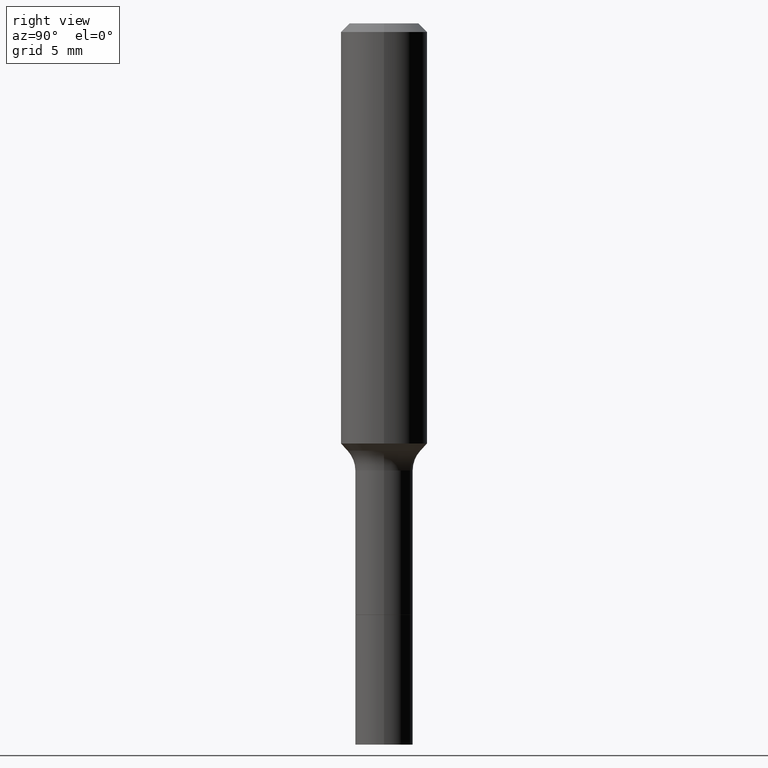
[diagram: clean part render]
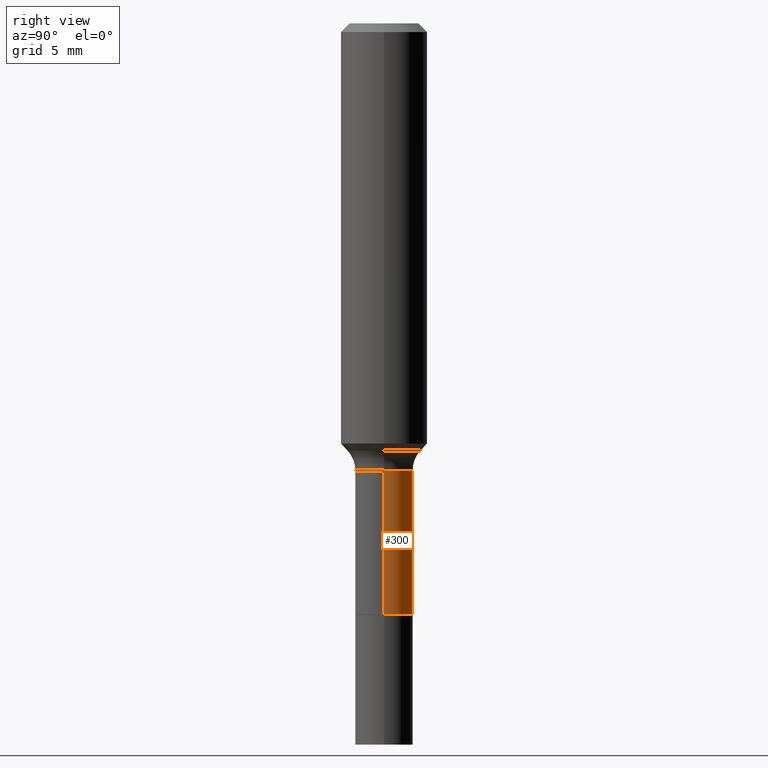
[diagram: same view with one face highlighted and labeled with its STEP entity id]
A machine part, right view. The second image highlights one B-rep face of the part: STEP entity #300.
In plain terms, the highlighted cylindrical surface (edge-blend (fillet) strip) has radius 2.0002 mm, axis along (-0, 0, 1).
Its self-contained STEP definition (entity closure, byte-faithful):
#11 = EDGE_CURVE ( 'NONE', #435, #438, #134, .T. ) ;
#16 = EDGE_CURVE ( 'NONE', #350, #37, #96, .T. ) ;
#36 = DIRECTION ( 'NONE',  ( -2.445468806185136597E-29, 3.491481338843145583E-15, 1.000000000000000000 ) ) ;
#37 = VERTEX_POINT ( 'NONE', #99 ) ;
#45 = CARTESIAN_POINT ( 'NONE',  ( 3.946986653182810382E-29, -5.635250880892837556E-15, -1.614000000000000101 ) ) ;
#71 = VECTOR ( 'NONE', #333, 39.37007874015748143 ) ;
#92 = EDGE_LOOP ( 'NONE', ( #171, #340, #132, #155 ) ) ;
#96 = LINE ( 'NONE', #411, #375 ) ;
#97 = DIRECTION ( 'NONE',  ( -2.445468806185136877E-29, 3.491481338843145188E-15, 1.000000000000000000 ) ) ;
#99 = CARTESIAN_POINT ( 'NONE',  ( -0.07874999999999994504, -4.388749523064369885E-15, -1.220499999999999918 ) ) ;
#107 = CARTESIAN_POINT ( 'NONE',  ( 0.000000000000000000, 0.000000000000000000, 0.000000000000000000 ) ) ;
#132 = ORIENTED_EDGE ( 'NONE', *, *, #138, .F. ) ;
#134 = LINE ( 'NONE', #449, #71 ) ;
#135 = CIRCLE ( 'NONE', #152, 0.07875000000000000056 ) ;
#138 = EDGE_CURVE ( 'NONE', #438, #37, #431, .T. ) ;
#152 = AXIS2_PLACEMENT_3D ( 'NONE', #45, #36, #513 ) ;
#155 = ORIENTED_EDGE ( 'NONE', *, *, #11, .F. ) ;
#171 = ORIENTED_EDGE ( 'NONE', *, *, #407, .T. ) ;
#189 = DIRECTION ( 'NONE',  ( -2.445468806185136597E-29, 3.491481338843145583E-15, 1.000000000000000000 ) ) ;
#209 = AXIS2_PLACEMENT_3D ( 'NONE', #253, #490, #368 ) ;
#224 = FACE_OUTER_BOUND ( 'NONE', #92, .T. ) ;
#235 = CARTESIAN_POINT ( 'NONE',  ( 0.07874999999999994504, -4.811261284925852373E-15, -1.220499999999999918 ) ) ;
#253 = CARTESIAN_POINT ( 'NONE',  ( 2.984694677948959472E-29, -4.261352974058059028E-15, -1.220499999999999918 ) ) ;
#261 = AXIS2_PLACEMENT_3D ( 'NONE', #107, #189, #503 ) ;
#300 = ADVANCED_FACE ( 'NONE', ( #224 ), #500, .T. ) ;
#312 = CARTESIAN_POINT ( 'NONE',  ( -0.07875000000000000056, -4.388749523064369885E-15, -1.614000000000000101 ) ) ;
#333 = DIRECTION ( 'NONE',  ( -2.445468806185136877E-29, 3.491481338843145188E-15, 1.000000000000000000 ) ) ;
#340 = ORIENTED_EDGE ( 'NONE', *, *, #16, .T. ) ;
#350 = VERTEX_POINT ( 'NONE', #312 ) ;
#368 = DIRECTION ( 'NONE',  ( 1.000000000000000000, -6.982962677686266711E-15, 0.000000000000000000 ) ) ;
#375 = VECTOR ( 'NONE', #97, 39.37007874015748143 ) ;
#407 = EDGE_CURVE ( 'NONE', #435, #350, #135, .T. ) ;
#411 = CARTESIAN_POINT ( 'NONE',  ( -0.07874999999999997280, 5.595524044110787031E-16, -3.873661383575737091E-30 ) ) ;
#431 = CIRCLE ( 'NONE', #209, 0.07874999999999994504 ) ;
#435 = VERTEX_POINT ( 'NONE', #483 ) ;
#438 = VERTEX_POINT ( 'NONE', #235 ) ;
#449 = CARTESIAN_POINT ( 'NONE',  ( 0.07874999999999997280, -5.499083108677933457E-16, 3.839989210939298316E-30 ) ) ;
#483 = CARTESIAN_POINT ( 'NONE',  ( 0.07875000000000000056, -6.185159191760630902E-15, -1.614000000000000101 ) ) ;
#490 = DIRECTION ( 'NONE',  ( -2.445468806185136597E-29, 3.491481338843145583E-15, 1.000000000000000000 ) ) ;
#500 = CYLINDRICAL_SURFACE ( 'NONE', #261, 0.07874999999999997280 ) ;
#503 = DIRECTION ( 'NONE',  ( 1.000000000000000000, -6.982962677686267499E-15, 4.876176775795935793E-29 ) ) ;
#513 = DIRECTION ( 'NONE',  ( 1.000000000000000000, -6.982962677686261977E-15, 0.000000000000000000 ) ) ;